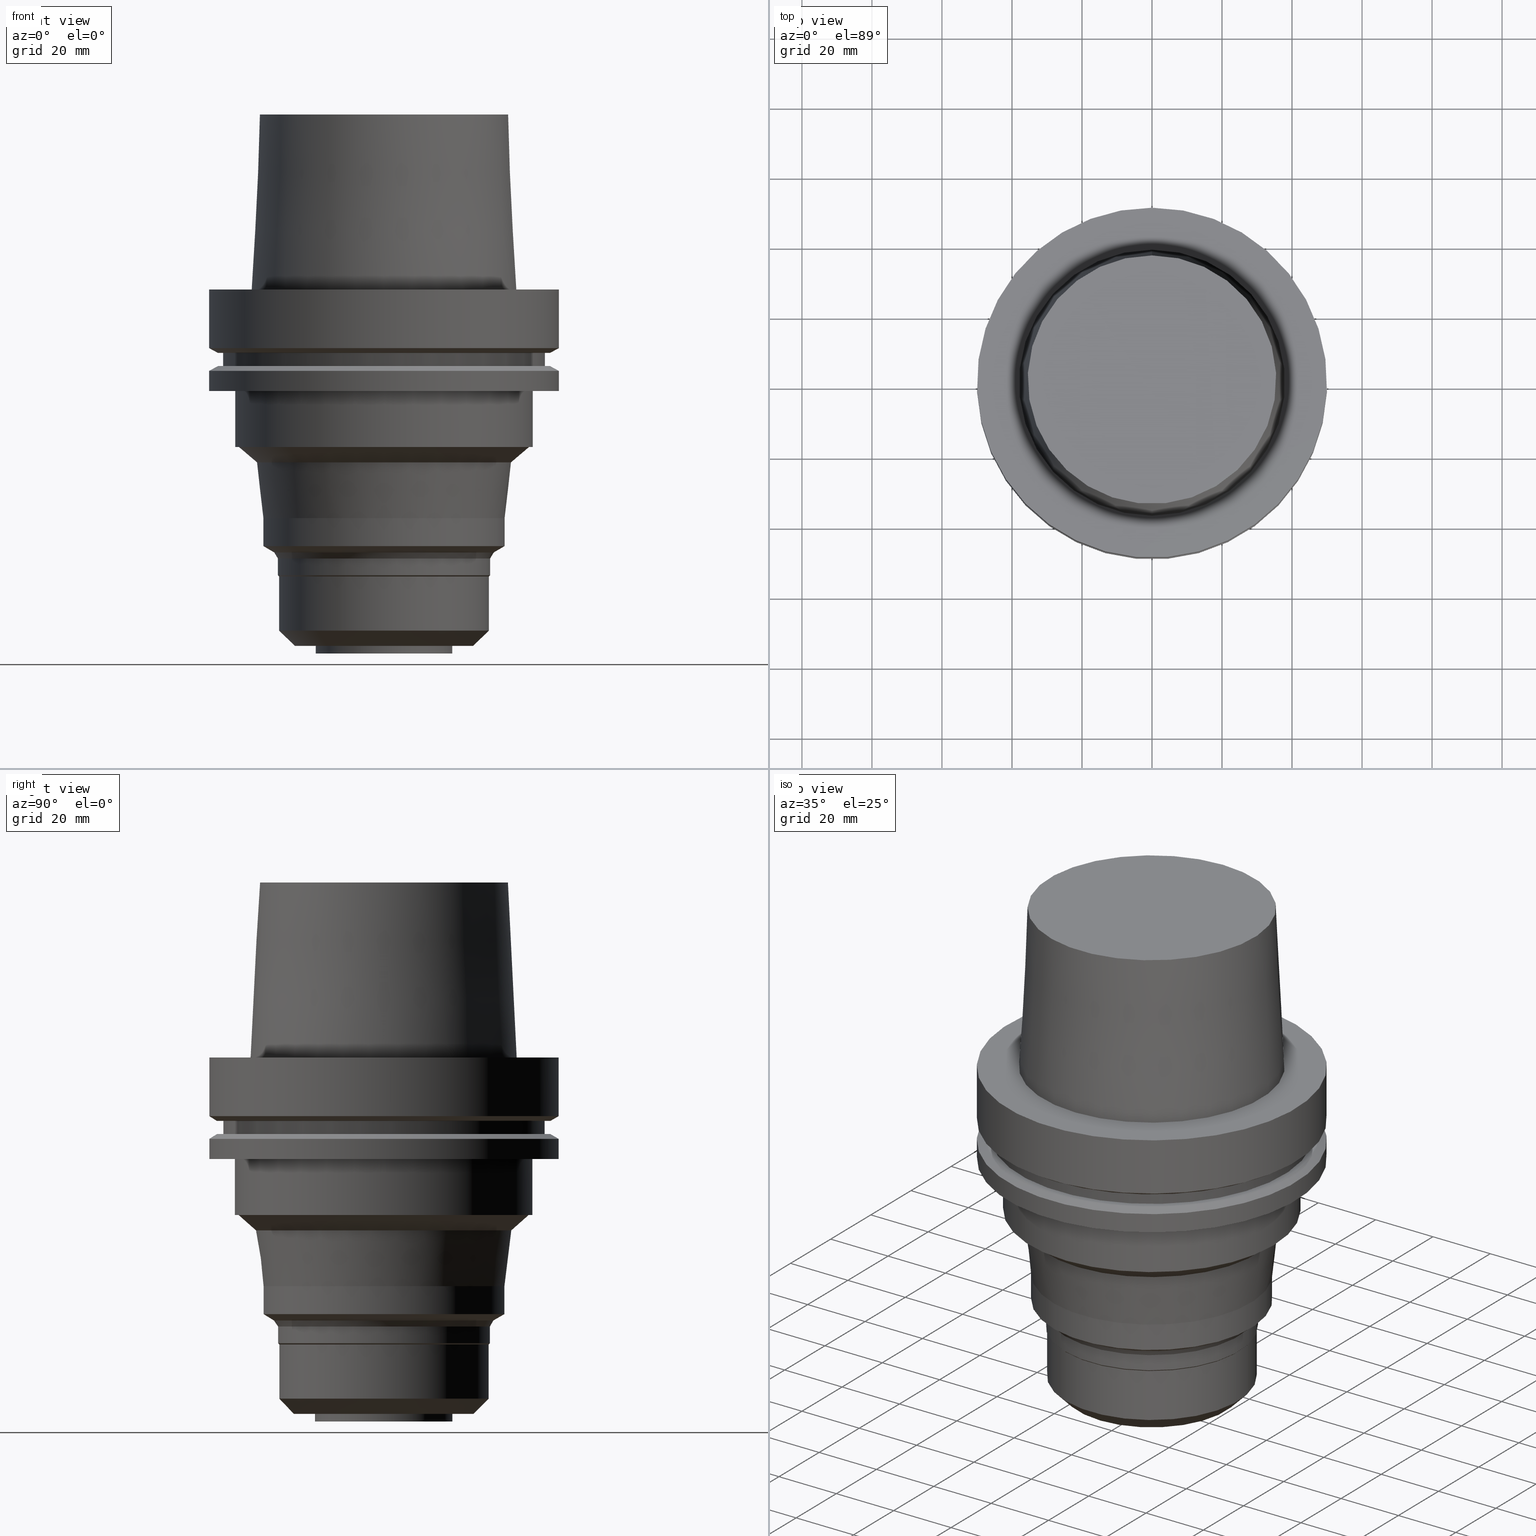
[diagram: canonical four-view strip — front | top / right | iso, engineering-drawing reading convention]
A machine part, canonical four-view strip (front | top / right | iso — engineering-drawing reading convention). The complete STEP part file that produces these views, byte-faithful:
ISO-10303-21;
HEADER;
FILE_DESCRIPTION((''),'1');
FILE_NAME('V:/90_\X2\53D65F9730C730FC30BF\X0\/00_\X2\6DE18DEF30C730FC30BF\X0\/ALL/HSK-BKUS\X2\52A05DE556F3\X0\_201801/HSK-A100-MEGADS/HSK-A100-MEGA.750DS-4.stp','2018-02-01T04:46:29',(''),(''),'Spatial Interop R21 SP3','Kubotek KeyCreator 2011 V10.0.2 (22737)',' ');
FILE_SCHEMA(('automotive_design'));
ENDSEC;
DATA;
#1=MECHANICAL_DESIGN_GEOMETRIC_PRESENTATION_REPRESENTATION(' ',(#10,#11,#12,#13,#14,#15,#16,#17,#18,#19,#20,#21,#22,#23,#24,#25,#26,#27,#28,#29,#30,#31,#32,#33,#34,#35,#36,#37,#38,#39,#40,#41,#42,#43,#44,#45,#46,#47,#48,#49,#50,#51,#52,#53,#54,#55,#56,#57,#58,#59),#6);
#2=PRODUCT_DEFINITION_CONTEXT('',#60,'design');
#3=APPLICATION_PROTOCOL_DEFINITION('INTERNATIONAL STANDARD','automotive_design',1994,#60);
#4=PRODUCT_CATEGORY_RELATIONSHIP('NONE','NONE',#61,#62);
#5=SHAPE_DEFINITION_REPRESENTATION(#63,#64);
#6= (GEOMETRIC_REPRESENTATION_CONTEXT(3)GLOBAL_UNCERTAINTY_ASSIGNED_CONTEXT((#67))GLOBAL_UNIT_ASSIGNED_CONTEXT((#69,#70,#71))REPRESENTATION_CONTEXT('NONE','WORKSPACE'));
#10=STYLED_ITEM('',(#73,#74),#75);
#11=STYLED_ITEM('',(#76),#77);
#12=STYLED_ITEM('',(#78),#79);
#13=STYLED_ITEM('',(#80,#81),#82);
#14=STYLED_ITEM('',(#83),#84);
#15=STYLED_ITEM('',(#85,#86),#87);
#16=STYLED_ITEM('',(#88,#89),#90);
#17=STYLED_ITEM('',(#91,#92),#93);
#18=STYLED_ITEM('',(#94,#95),#96);
#19=STYLED_ITEM('',(#97,#98),#99);
#20=STYLED_ITEM('',(#100),#101);
#21=STYLED_ITEM('',(#102),#103);
#22=STYLED_ITEM('',(#104),#105);
#23=STYLED_ITEM('',(#106,#107),#108);
#24=STYLED_ITEM('',(#109),#110);
#25=STYLED_ITEM('',(#111,#112),#113);
#26=STYLED_ITEM('',(#114),#115);
#27=STYLED_ITEM('',(#116,#117),#118);
#28=STYLED_ITEM('',(#119,#120),#121);
#29=STYLED_ITEM('',(#122,#123),#124);
#30=STYLED_ITEM('',(#125),#126);
#31=STYLED_ITEM('',(#127,#128),#129);
#32=STYLED_ITEM('',(#130,#131),#132);
#33=STYLED_ITEM('',(#133),#134);
#34=STYLED_ITEM('',(#135,#136),#137);
#35=STYLED_ITEM('',(#138,#139),#140);
#36=STYLED_ITEM('',(#141),#142);
#37=STYLED_ITEM('',(#143,#144),#145);
#38=STYLED_ITEM('',(#146),#147);
#39=STYLED_ITEM('',(#148),#149);
#40=STYLED_ITEM('',(#150),#151);
#41=STYLED_ITEM('',(#152),#153);
#42=STYLED_ITEM('',(#154,#155),#156);
#43=STYLED_ITEM('',(#157,#158),#159);
#44=STYLED_ITEM('',(#160,#161),#162);
#45=STYLED_ITEM('',(#163),#164);
#46=STYLED_ITEM('',(#165,#166),#167);
#47=STYLED_ITEM('',(#168,#169),#170);
#48=STYLED_ITEM('',(#171,#172),#173);
#49=STYLED_ITEM('',(#174,#175),#176);
#50=STYLED_ITEM('',(#177),#178);
#51=STYLED_ITEM('',(#179),#180);
#52=STYLED_ITEM('',(#181),#182);
#53=STYLED_ITEM('',(#183),#184);
#54=STYLED_ITEM('',(#185),#186);
#55=STYLED_ITEM('',(#187),#188);
#56=STYLED_ITEM('',(#189),#190);
#57=STYLED_ITEM('',(#191,#192),#193);
#58=STYLED_ITEM('',(#194),#195);
#59=STYLED_ITEM('',(#196,#197),#198);
#60=APPLICATION_CONTEXT(' ');
#61=PRODUCT_CATEGORY('part','NONE');
#62=PRODUCT_RELATED_PRODUCT_CATEGORY('detail',' ',(#199));
#63=PRODUCT_DEFINITION_SHAPE('NONE','NONE',#200);
#64=ADVANCED_BREP_SHAPE_REPRESENTATION('Unnamed[1]',(#137,#201),#6);
#67=UNCERTAINTY_MEASURE_WITH_UNIT(LENGTH_MEASURE(1.0E-006),#69,'','');
#69= (CONVERSION_BASED_UNIT('MILLIMETRE',#204)LENGTH_UNIT()NAMED_UNIT(#207));
#70= (NAMED_UNIT(#209)PLANE_ANGLE_UNIT()SI_UNIT($,.RADIAN.));
#71= (NAMED_UNIT(#209)SOLID_ANGLE_UNIT()SI_UNIT($,.STERADIAN.));
#73=PRESENTATION_STYLE_ASSIGNMENT((#215));
#74=PRESENTATION_STYLE_ASSIGNMENT((#216));
#75=ADVANCED_FACE('Unnamed[1]',(#217),#218,.T.);
#76=PRESENTATION_STYLE_ASSIGNMENT((#219));
#77=EDGE_CURVE('Unnamed[1]',#220,#220,#221,.T.);
#78=PRESENTATION_STYLE_ASSIGNMENT((#222));
#79=EDGE_CURVE('Unnamed[1]',#223,#223,#224,.T.);
#80=PRESENTATION_STYLE_ASSIGNMENT((#225));
#81=PRESENTATION_STYLE_ASSIGNMENT((#226));
#82=ADVANCED_FACE('Unnamed[1]',(#227,#228),#229,.T.);
#83=PRESENTATION_STYLE_ASSIGNMENT((#230));
#84=EDGE_CURVE('Unnamed[1]',#231,#231,#232,.T.);
#85=PRESENTATION_STYLE_ASSIGNMENT((#233));
#86=PRESENTATION_STYLE_ASSIGNMENT((#234));
#87=ADVANCED_FACE('Unnamed[1]',(#235,#236),#237,.T.);
#88=PRESENTATION_STYLE_ASSIGNMENT((#238));
#89=PRESENTATION_STYLE_ASSIGNMENT((#239));
#90=ADVANCED_FACE('Unnamed[1]',(#240,#241),#242,.T.);
#91=PRESENTATION_STYLE_ASSIGNMENT((#243));
#92=PRESENTATION_STYLE_ASSIGNMENT((#244));
#93=ADVANCED_FACE('Unnamed[1]',(#245,#246),#247,.T.);
#94=PRESENTATION_STYLE_ASSIGNMENT((#248));
#95=PRESENTATION_STYLE_ASSIGNMENT((#249));
#96=ADVANCED_FACE('Unnamed[1]',(#250,#251),#252,.T.);
#97=PRESENTATION_STYLE_ASSIGNMENT((#253));
#98=PRESENTATION_STYLE_ASSIGNMENT((#254));
#99=ADVANCED_FACE('Unnamed[1]',(#255,#256),#257,.T.);
#100=PRESENTATION_STYLE_ASSIGNMENT((#258));
#101=EDGE_CURVE('Unnamed[1]',#259,#259,#260,.T.);
#102=PRESENTATION_STYLE_ASSIGNMENT((#261));
#103=EDGE_CURVE('Unnamed[1]',#262,#262,#263,.T.);
#104=PRESENTATION_STYLE_ASSIGNMENT((#264));
#105=EDGE_CURVE('Unnamed[1]',#265,#265,#266,.T.);
#106=PRESENTATION_STYLE_ASSIGNMENT((#267));
#107=PRESENTATION_STYLE_ASSIGNMENT((#268));
#108=ADVANCED_FACE('Unnamed[1]',(#269),#270,.T.);
#109=PRESENTATION_STYLE_ASSIGNMENT((#271));
#110=EDGE_CURVE('Unnamed[1]',#272,#272,#273,.T.);
#111=PRESENTATION_STYLE_ASSIGNMENT((#274));
#112=PRESENTATION_STYLE_ASSIGNMENT((#275));
#113=ADVANCED_FACE('Unnamed[1]',(#276,#277),#278,.T.);
#114=PRESENTATION_STYLE_ASSIGNMENT((#279));
#115=EDGE_CURVE('Unnamed[1]',#280,#280,#281,.T.);
#116=PRESENTATION_STYLE_ASSIGNMENT((#282));
#117=PRESENTATION_STYLE_ASSIGNMENT((#283));
#118=ADVANCED_FACE('Unnamed[1]',(#284,#285),#286,.T.);
#119=PRESENTATION_STYLE_ASSIGNMENT((#287));
#120=PRESENTATION_STYLE_ASSIGNMENT((#288));
#121=ADVANCED_FACE('Unnamed[1]',(#289,#290),#291,.T.);
#122=PRESENTATION_STYLE_ASSIGNMENT((#292));
#123=PRESENTATION_STYLE_ASSIGNMENT((#293));
#124=ADVANCED_FACE('Unnamed[1]',(#294,#295),#296,.T.);
#125=PRESENTATION_STYLE_ASSIGNMENT((#297));
#126=EDGE_CURVE('Unnamed[1]',#298,#298,#299,.T.);
#127=PRESENTATION_STYLE_ASSIGNMENT((#300));
#128=PRESENTATION_STYLE_ASSIGNMENT((#301));
#129=ADVANCED_FACE('Unnamed[1]',(#302,#303),#304,.T.);
#130=PRESENTATION_STYLE_ASSIGNMENT((#305));
#131=PRESENTATION_STYLE_ASSIGNMENT((#306));
#132=ADVANCED_FACE('Unnamed[1]',(#307,#308),#309,.T.);
#133=PRESENTATION_STYLE_ASSIGNMENT((#310));
#134=EDGE_CURVE('Unnamed[1]',#311,#311,#312,.T.);
#135=PRESENTATION_STYLE_ASSIGNMENT((#313));
#136=PRESENTATION_STYLE_ASSIGNMENT((#314));
#137=MANIFOLD_SOLID_BREP('Unnamed[1]',#315);
#138=PRESENTATION_STYLE_ASSIGNMENT((#316));
#139=PRESENTATION_STYLE_ASSIGNMENT((#317));
#140=ADVANCED_FACE('Unnamed[1]',(#318,#319),#320,.T.);
#141=PRESENTATION_STYLE_ASSIGNMENT((#321));
#142=EDGE_CURVE('Unnamed[1]',#322,#322,#323,.T.);
#143=PRESENTATION_STYLE_ASSIGNMENT((#324));
#144=PRESENTATION_STYLE_ASSIGNMENT((#325));
#145=ADVANCED_FACE('Unnamed[1]',(#326,#327),#328,.T.);
#146=PRESENTATION_STYLE_ASSIGNMENT((#329));
#147=EDGE_CURVE('Unnamed[1]',#330,#330,#331,.T.);
#148=PRESENTATION_STYLE_ASSIGNMENT((#332));
#149=EDGE_CURVE('Unnamed[1]',#333,#333,#334,.T.);
#150=PRESENTATION_STYLE_ASSIGNMENT((#335));
#151=EDGE_CURVE('Unnamed[1]',#336,#336,#337,.T.);
#152=PRESENTATION_STYLE_ASSIGNMENT((#338));
#153=EDGE_CURVE('Unnamed[1]',#339,#339,#340,.T.);
#154=PRESENTATION_STYLE_ASSIGNMENT((#341));
#155=PRESENTATION_STYLE_ASSIGNMENT((#342));
#156=ADVANCED_FACE('Unnamed[1]',(#343,#344),#345,.T.);
#157=PRESENTATION_STYLE_ASSIGNMENT((#346));
#158=PRESENTATION_STYLE_ASSIGNMENT((#347));
#159=ADVANCED_FACE('Unnamed[1]',(#348,#349),#350,.T.);
#160=PRESENTATION_STYLE_ASSIGNMENT((#351));
#161=PRESENTATION_STYLE_ASSIGNMENT((#352));
#162=ADVANCED_FACE('Unnamed[1]',(#353,#354),#355,.T.);
#163=PRESENTATION_STYLE_ASSIGNMENT((#356));
#164=EDGE_CURVE('Unnamed[1]',#357,#357,#358,.T.);
#165=PRESENTATION_STYLE_ASSIGNMENT((#359));
#166=PRESENTATION_STYLE_ASSIGNMENT((#360));
#167=ADVANCED_FACE('Unnamed[1]',(#361,#362),#363,.T.);
#168=PRESENTATION_STYLE_ASSIGNMENT((#364));
#169=PRESENTATION_STYLE_ASSIGNMENT((#365));
#170=ADVANCED_FACE('Unnamed[1]',(#366,#367),#368,.T.);
#171=PRESENTATION_STYLE_ASSIGNMENT((#369));
#172=PRESENTATION_STYLE_ASSIGNMENT((#370));
#173=ADVANCED_FACE('Unnamed[1]',(#371,#372),#373,.T.);
#174=PRESENTATION_STYLE_ASSIGNMENT((#374));
#175=PRESENTATION_STYLE_ASSIGNMENT((#375));
#176=ADVANCED_FACE('Unnamed[1]',(#376,#377),#378,.T.);
#177=PRESENTATION_STYLE_ASSIGNMENT((#379));
#178=EDGE_CURVE('Unnamed[1]',#380,#380,#381,.T.);
#179=PRESENTATION_STYLE_ASSIGNMENT((#382));
#180=EDGE_CURVE('Unnamed[1]',#383,#383,#384,.T.);
#181=PRESENTATION_STYLE_ASSIGNMENT((#385));
#182=EDGE_CURVE('Unnamed[1]',#386,#386,#387,.T.);
#183=PRESENTATION_STYLE_ASSIGNMENT((#388));
#184=EDGE_CURVE('Unnamed[1]',#389,#389,#390,.T.);
#185=PRESENTATION_STYLE_ASSIGNMENT((#391));
#186=EDGE_CURVE('Unnamed[1]',#392,#392,#393,.T.);
#187=PRESENTATION_STYLE_ASSIGNMENT((#394));
#188=EDGE_CURVE('Unnamed[1]',#395,#395,#396,.T.);
#189=PRESENTATION_STYLE_ASSIGNMENT((#397));
#190=EDGE_CURVE('Unnamed[1]',#398,#398,#399,.T.);
#191=PRESENTATION_STYLE_ASSIGNMENT((#400));
#192=PRESENTATION_STYLE_ASSIGNMENT((#401));
#193=ADVANCED_FACE('Unnamed[1]',(#402,#403),#404,.T.);
#194=PRESENTATION_STYLE_ASSIGNMENT((#405));
#195=EDGE_CURVE('Unnamed[1]',#406,#406,#407,.T.);
#196=PRESENTATION_STYLE_ASSIGNMENT((#408));
#197=PRESENTATION_STYLE_ASSIGNMENT((#409));
#198=ADVANCED_FACE('Unnamed[1]',(#410,#411),#412,.T.);
#199=PRODUCT('Unnamed[1]','Unnamed[1]','PART-Unnamed[1]-DESC',(#413));
#200=PRODUCT_DEFINITION('NONE','NONE',#414,#2);
#201=AXIS2_PLACEMENT_3D('',#415,#416,#417);
#204=LENGTH_MEASURE_WITH_UNIT(LENGTH_MEASURE(1.0),#418);
#207=DIMENSIONAL_EXPONENTS(1.0,0.0,0.0,0.0,0.0,0.0,0.0);
#209=DIMENSIONAL_EXPONENTS(0.0,0.0,0.0,0.0,0.0,0.0,0.0);
#215=SURFACE_STYLE_USAGE(.BOTH.,#419);
#216=CURVE_STYLE('',#420,POSITIVE_LENGTH_MEASURE(1000.0),#421);
#217=FACE_OUTER_BOUND('',#422,.T.);
#218=PLANE('',#423);
#219=CURVE_STYLE('',#424,POSITIVE_LENGTH_MEASURE(1000.0),#425);
#220=VERTEX_POINT('',#426);
#221=CIRCLE('',#427,50.0);
#222=CURVE_STYLE('',#428,POSITIVE_LENGTH_MEASURE(1000.0),#429);
#223=VERTEX_POINT('',#430);
#224=CIRCLE('',#431,30.0);
#225=SURFACE_STYLE_USAGE(.BOTH.,#432);
#226=CURVE_STYLE('',#433,POSITIVE_LENGTH_MEASURE(1000.0),#434);
#227=FACE_BOUND('',#435,.T.);
#228=FACE_BOUND('',#436,.T.);
#229=CONICAL_SURFACE('',#437,48.81129763,1.04719755328238);
#230=CURVE_STYLE('',#438,POSITIVE_LENGTH_MEASURE(1000.0),#439);
#231=VERTEX_POINT('',#440);
#232=CIRCLE('',#441,41.4220102418478);
#233=SURFACE_STYLE_USAGE(.BOTH.,#442);
#234=CURVE_STYLE('',#443,POSITIVE_LENGTH_MEASURE(1000.0),#444);
#235=FACE_BOUND('',#445,.T.);
#236=FACE_BOUND('',#446,.T.);
#237=CYLINDRICAL_SURFACE('',#447,50.0);
#238=SURFACE_STYLE_USAGE(.BOTH.,#448);
#239=CURVE_STYLE('',#449,POSITIVE_LENGTH_MEASURE(1000.0),#450);
#240=FACE_BOUND('',#451,.T.);
#241=FACE_BOUND('',#452,.T.);
#242=CYLINDRICAL_SURFACE('',#453,30.3500000000001);
#243=SURFACE_STYLE_USAGE(.BOTH.,#454);
#244=CURVE_STYLE('',#455,POSITIVE_LENGTH_MEASURE(1000.0),#456);
#245=FACE_BOUND('',#457,.T.);
#246=FACE_BOUND('',#458,.T.);
#247=CYLINDRICAL_SURFACE('',#459,46.0);
#248=SURFACE_STYLE_USAGE(.BOTH.,#460);
#249=CURVE_STYLE('',#461,POSITIVE_LENGTH_MEASURE(1000.0),#462);
#250=FACE_BOUND('',#463,.T.);
#251=FACE_BOUND('',#464,.T.);
#252=CONICAL_SURFACE('',#465,35.4797503992108,0.122535712139125);
#253=SURFACE_STYLE_USAGE(.BOTH.,#466);
#254=CURVE_STYLE('',#467,POSITIVE_LENGTH_MEASURE(1000.0),#468);
#255=FACE_BOUND('',#469,.T.);
#256=FACE_BOUND('',#470,.T.);
#257=CYLINDRICAL_SURFACE('',#471,19.625107076497);
#258=CURVE_STYLE('',#472,POSITIVE_LENGTH_MEASURE(1000.0),#473);
#259=VERTEX_POINT('',#474);
#260=CIRCLE('',#475,50.0);
#261=CURVE_STYLE('',#476,POSITIVE_LENGTH_MEASURE(1000.0),#477);
#262=VERTEX_POINT('',#478);
#263=CIRCLE('',#479,47.62259526);
#264=CURVE_STYLE('',#480,POSITIVE_LENGTH_MEASURE(1000.0),#481);
#265=VERTEX_POINT('',#482);
#266=CIRCLE('',#483,42.5);
#267=SURFACE_STYLE_USAGE(.BOTH.,#484);
#268=CURVE_STYLE('',#485,POSITIVE_LENGTH_MEASURE(1000.0),#486);
#269=FACE_OUTER_BOUND('',#487,.T.);
#270=PLANE('',#488);
#271=CURVE_STYLE('',#489,POSITIVE_LENGTH_MEASURE(1000.0),#490);
#272=VERTEX_POINT('',#491);
#273=CIRCLE('',#492,36.4595007984214);
#274=SURFACE_STYLE_USAGE(.BOTH.,#493);
#275=CURVE_STYLE('',#494,POSITIVE_LENGTH_MEASURE(1000.0),#495);
#276=FACE_BOUND('',#496,.T.);
#277=FACE_BOUND('',#497,.T.);
#278=CYLINDRICAL_SURFACE('',#498,50.0);
#279=CURVE_STYLE('',#499,POSITIVE_LENGTH_MEASURE(1000.0),#500);
#280=VERTEX_POINT('',#501);
#281=CIRCLE('',#502,34.4999999999997);
#282=SURFACE_STYLE_USAGE(.BOTH.,#503);
#283=CURVE_STYLE('',#504,POSITIVE_LENGTH_MEASURE(1000.0),#505);
#284=FACE_BOUND('',#506,.T.);
#285=FACE_BOUND('',#507,.T.);
#286=CONICAL_SURFACE('',#508,36.7500000007484,0.0499583956894843);
#287=SURFACE_STYLE_USAGE(.BOTH.,#509);
#288=CURVE_STYLE('',#510,POSITIVE_LENGTH_MEASURE(1000.0),#511);
#289=FACE_BOUND('',#512,.T.);
#290=FACE_BOUND('',#513,.T.);
#291=CONICAL_SURFACE('',#514,48.81129763,1.04719755328238);
#292=SURFACE_STYLE_USAGE(.BOTH.,#515);
#293=CURVE_STYLE('',#516,POSITIVE_LENGTH_MEASURE(1000.0),#517);
#294=FACE_OUTER_BOUND('',#518,.T.);
#295=FACE_BOUND('',#519,.T.);
#296=PLANE('',#520);
#297=CURVE_STYLE('',#521,POSITIVE_LENGTH_MEASURE(1000.0),#522);
#298=VERTEX_POINT('',#523);
#299=CIRCLE('',#524,19.625107076497);
#300=SURFACE_STYLE_USAGE(.BOTH.,#525);
#301=CURVE_STYLE('',#526,POSITIVE_LENGTH_MEASURE(1000.0),#527);
#302=FACE_BOUND('',#528,.T.);
#303=FACE_BOUND('',#529,.T.);
#304=CONICAL_SURFACE('',#530,30.85,0.523598775598133);
#305=SURFACE_STYLE_USAGE(.BOTH.,#531);
#306=CURVE_STYLE('',#532,POSITIVE_LENGTH_MEASURE(1000.0),#533);
#307=FACE_BOUND('',#534,.T.);
#308=FACE_OUTER_BOUND('',#535,.T.);
#309=PLANE('',#536);
#310=CURVE_STYLE('',#537,POSITIVE_LENGTH_MEASURE(1000.0),#538);
#311=VERTEX_POINT('',#539);
#312=CIRCLE('',#540,37.9999999999349);
#313=SURFACE_STYLE_USAGE(.BOTH.,#541);
#314=CURVE_STYLE('',#542,POSITIVE_LENGTH_MEASURE(1000.0),#543);
#315=CLOSED_SHELL('',(#75,#118,#140,#113,#121,#170,#93,#124,#82,#87,#198,#167,#162,#173,#96,#193,#156,#129,#90,#176,#159,#145,#132,#99,#108));
#316=SURFACE_STYLE_USAGE(.BOTH.,#544);
#317=CURVE_STYLE('',#545,POSITIVE_LENGTH_MEASURE(1000.0),#546);
#318=FACE_OUTER_BOUND('',#547,.T.);
#319=FACE_BOUND('',#548,.T.);
#320=PLANE('',#549);
#321=CURVE_STYLE('',#550,POSITIVE_LENGTH_MEASURE(1000.0),#551);
#322=VERTEX_POINT('',#552);
#323=CIRCLE('',#553,46.0);
#324=SURFACE_STYLE_USAGE(.BOTH.,#554);
#325=CURVE_STYLE('',#555,POSITIVE_LENGTH_MEASURE(1000.0),#556);
#326=FACE_BOUND('',#557,.T.);
#327=FACE_BOUND('',#558,.T.);
#328=CONICAL_SURFACE('',#559,27.8276930485173,0.78539816339748);
#329=CURVE_STYLE('',#560,POSITIVE_LENGTH_MEASURE(1000.0),#561);
#330=VERTEX_POINT('',#562);
#331=CIRCLE('',#563,42.5);
#332=CURVE_STYLE('',#564,POSITIVE_LENGTH_MEASURE(1000.0),#565);
#333=VERTEX_POINT('',#566);
#334=CIRCLE('',#567,50.0);
#335=CURVE_STYLE('',#568,POSITIVE_LENGTH_MEASURE(1000.0),#569);
#336=VERTEX_POINT('',#570);
#337=CIRCLE('',#571,46.0);
#338=CURVE_STYLE('',#572,POSITIVE_LENGTH_MEASURE(1000.0),#573);
#339=VERTEX_POINT('',#574);
#340=CIRCLE('',#575,30.0000000000001);
#341=SURFACE_STYLE_USAGE(.BOTH.,#576);
#342=CURVE_STYLE('',#577,POSITIVE_LENGTH_MEASURE(1000.0),#578);
#343=FACE_BOUND('',#579,.T.);
#344=FACE_BOUND('',#580,.T.);
#345=CONICAL_SURFACE('',#581,32.9249999999997,1.04719755119622);
#346=SURFACE_STYLE_USAGE(.BOTH.,#582);
#347=CURVE_STYLE('',#583,POSITIVE_LENGTH_MEASURE(1000.0),#584);
#348=FACE_BOUND('',#585,.T.);
#349=FACE_BOUND('',#586,.T.);
#350=CYLINDRICAL_SURFACE('',#587,30.0000000000001);
#351=SURFACE_STYLE_USAGE(.BOTH.,#588);
#352=CURVE_STYLE('',#589,POSITIVE_LENGTH_MEASURE(1000.0),#590);
#353=FACE_BOUND('',#591,.T.);
#354=FACE_OUTER_BOUND('',#592,.T.);
#355=PLANE('',#593);
#356=CURVE_STYLE('',#594,POSITIVE_LENGTH_MEASURE(1000.0),#595);
#357=VERTEX_POINT('',#596);
#358=CIRCLE('',#597,50.0);
#359=SURFACE_STYLE_USAGE(.BOTH.,#598);
#360=CURVE_STYLE('',#599,POSITIVE_LENGTH_MEASURE(1000.0),#600);
#361=FACE_BOUND('',#601,.T.);
#362=FACE_BOUND('',#602,.T.);
#363=CYLINDRICAL_SURFACE('',#603,42.5);
#364=SURFACE_STYLE_USAGE(.BOTH.,#604);
#365=CURVE_STYLE('',#605,POSITIVE_LENGTH_MEASURE(1000.0),#606);
#366=FACE_BOUND('',#607,.T.);
#367=FACE_OUTER_BOUND('',#608,.T.);
#368=PLANE('',#609);
#369=SURFACE_STYLE_USAGE(.BOTH.,#610);
#370=CURVE_STYLE('',#611,POSITIVE_LENGTH_MEASURE(1000.0),#612);
#371=FACE_BOUND('',#613,.T.);
#372=FACE_BOUND('',#614,.T.);
#373=CONICAL_SURFACE('',#615,38.9407555201346,0.846666019467012);
#374=SURFACE_STYLE_USAGE(.BOTH.,#616);
#375=CURVE_STYLE('',#617,POSITIVE_LENGTH_MEASURE(1000.0),#618);
#376=FACE_BOUND('',#619,.T.);
#377=FACE_BOUND('',#620,.T.);
#378=CONICAL_SURFACE('',#621,30.175,0.785398163396514);
#379=CURVE_STYLE('',#622,POSITIVE_LENGTH_MEASURE(1000.0),#623);
#380=VERTEX_POINT('',#624);
#381=CIRCLE('',#625,35.5000000015618);
#382=CURVE_STYLE('',#626,POSITIVE_LENGTH_MEASURE(1000.0),#627);
#383=VERTEX_POINT('',#628);
#384=CIRCLE('',#629,47.62259526);
#385=CURVE_STYLE('',#630,POSITIVE_LENGTH_MEASURE(1000.0),#631);
#386=VERTEX_POINT('',#632);
#387=CIRCLE('',#633,31.3499999999996);
#388=CURVE_STYLE('',#634,POSITIVE_LENGTH_MEASURE(1000.0),#635);
#389=VERTEX_POINT('',#636);
#390=CIRCLE('',#637,30.3500000000003);
#391=CURVE_STYLE('',#638,POSITIVE_LENGTH_MEASURE(1000.0),#639);
#392=VERTEX_POINT('',#640);
#393=CIRCLE('',#641,30.3499999999999);
#394=CURVE_STYLE('',#642,POSITIVE_LENGTH_MEASURE(1000.0),#643);
#395=VERTEX_POINT('',#644);
#396=CIRCLE('',#645,25.6553860970345);
#397=CURVE_STYLE('',#646,POSITIVE_LENGTH_MEASURE(1000.0),#647);
#398=VERTEX_POINT('',#648);
#399=CIRCLE('',#649,19.625107076497);
#400=SURFACE_STYLE_USAGE(.BOTH.,#650);
#401=CURVE_STYLE('',#651,POSITIVE_LENGTH_MEASURE(1000.0),#652);
#402=FACE_BOUND('',#653,.T.);
#403=FACE_BOUND('',#654,.T.);
#404=CYLINDRICAL_SURFACE('',#655,34.4999999999999);
#405=CURVE_STYLE('',#656,POSITIVE_LENGTH_MEASURE(1000.0),#657);
#406=VERTEX_POINT('',#658);
#407=CIRCLE('',#659,34.5000000000001);
#408=SURFACE_STYLE_USAGE(.BOTH.,#660);
#409=CURVE_STYLE('',#661,POSITIVE_LENGTH_MEASURE(1000.0),#662);
#410=FACE_BOUND('',#663,.T.);
#411=FACE_OUTER_BOUND('',#664,.T.);
#412=PLANE('',#665);
#413=PRODUCT_CONTEXT('',#60,'mechanical');
#414=PRODUCT_DEFINITION_FORMATION_WITH_SPECIFIED_SOURCE(' ','NONE',#199,.NOT_KNOWN.);
#415=CARTESIAN_POINT('',(0.0,0.0,0.0));
#416=DIRECTION('',(0.0,0.0,1.0));
#417=DIRECTION('',(1.0,0.0,0.0));
#418= (NAMED_UNIT(#207)LENGTH_UNIT()SI_UNIT(.MILLI.,.METRE.));
#419=SURFACE_SIDE_STYLE('',(#667));
#420=DRAUGHTING_PRE_DEFINED_CURVE_FONT('continuous');
#421=COLOUR_RGB('',0.0,1.0,0.0);
#422=EDGE_LOOP('',(#668));
#423=AXIS2_PLACEMENT_3D('',#669,#670,#671);
#424=DRAUGHTING_PRE_DEFINED_CURVE_FONT('continuous');
#425=COLOUR_RGB('',0.0,1.0,0.0);
#426=CARTESIAN_POINT('',(1.77573785876366E-015,50.0,-29.0));
#427=AXIS2_PLACEMENT_3D('',#672,#673,#674);
#428=DRAUGHTING_PRE_DEFINED_CURVE_FONT('continuous');
#429=COLOUR_RGB('',0.0,1.0,0.0);
#430=CARTESIAN_POINT('',(5.96742133217014E-015,30.0,-97.4553860970346));
#431=AXIS2_PLACEMENT_3D('',#675,#676,#677);
#432=SURFACE_SIDE_STYLE('',(#678));
#433=DRAUGHTING_PRE_DEFINED_CURVE_FONT('continuous');
#434=COLOUR_RGB('',0.0,1.0,0.0);
#435=EDGE_LOOP('',(#679));
#436=EDGE_LOOP('',(#680));
#437=AXIS2_PLACEMENT_3D('',#681,#682,#683);
#438=DRAUGHTING_PRE_DEFINED_CURVE_FONT('continuous');
#439=COLOUR_RGB('',0.0,1.0,0.0);
#440=CARTESIAN_POINT('',(2.75545529808154E-015,41.4220102418478,-45.0));
#441=AXIS2_PLACEMENT_3D('',#684,#685,#686);
#442=SURFACE_SIDE_STYLE('',(#687));
#443=DRAUGHTING_PRE_DEFINED_CURVE_FONT('continuous');
#444=COLOUR_RGB('',0.0,1.0,0.0);
#445=EDGE_LOOP('',(#688));
#446=EDGE_LOOP('',(#689));
#447=AXIS2_PLACEMENT_3D('',#690,#691,#692);
#448=SURFACE_SIDE_STYLE('',(#693));
#449=DRAUGHTING_PRE_DEFINED_CURVE_FONT('continuous');
#450=COLOUR_RGB('',0.0,1.0,0.0);
#451=EDGE_LOOP('',(#694));
#452=EDGE_LOOP('',(#695));
#453=AXIS2_PLACEMENT_3D('',#696,#697,#698);
#454=SURFACE_SIDE_STYLE('',(#699));
#455=DRAUGHTING_PRE_DEFINED_CURVE_FONT('continuous');
#456=COLOUR_RGB('',0.0,1.0,0.0);
#457=EDGE_LOOP('',(#700));
#458=EDGE_LOOP('',(#701));
#459=AXIS2_PLACEMENT_3D('',#702,#703,#704);
#460=SURFACE_SIDE_STYLE('',(#705));
#461=DRAUGHTING_PRE_DEFINED_CURVE_FONT('continuous');
#462=COLOUR_RGB('',0.0,1.0,0.0);
#463=EDGE_LOOP('',(#706));
#464=EDGE_LOOP('',(#707));
#465=AXIS2_PLACEMENT_3D('',#708,#709,#710);
#466=SURFACE_SIDE_STYLE('',(#711));
#467=DRAUGHTING_PRE_DEFINED_CURVE_FONT('continuous');
#468=COLOUR_RGB('',0.0,1.0,0.0);
#469=EDGE_LOOP('',(#712));
#470=EDGE_LOOP('',(#713));
#471=AXIS2_PLACEMENT_3D('',#714,#715,#716);
#472=DRAUGHTING_PRE_DEFINED_CURVE_FONT('continuous');
#473=COLOUR_RGB('',0.0,1.0,0.0);
#474=CARTESIAN_POINT('',(-1.81547968506605E-031,50.0,-9.76766004263236E-016));
#475=AXIS2_PLACEMENT_3D('',#717,#718,#719);
#476=DRAUGHTING_PRE_DEFINED_CURVE_FONT('continuous');
#477=COLOUR_RGB('',0.0,1.0,0.0);
#478=CARTESIAN_POINT('',(1.33945743656742E-015,47.62259526,-21.875));
#479=AXIS2_PLACEMENT_3D('',#720,#721,#722);
#480=DRAUGHTING_PRE_DEFINED_CURVE_FONT('continuous');
#481=COLOUR_RGB('',0.0,1.0,0.0);
#482=CARTESIAN_POINT('',(2.75545529808154E-015,42.5,-45.0));
#483=AXIS2_PLACEMENT_3D('',#723,#724,#725);
#484=SURFACE_SIDE_STYLE('',(#726));
#485=DRAUGHTING_PRE_DEFINED_CURVE_FONT('continuous');
#486=COLOUR_RGB('',0.0,1.0,0.0);
#487=EDGE_LOOP('',(#727));
#488=AXIS2_PLACEMENT_3D('',#728,#729,#730);
#489=DRAUGHTING_PRE_DEFINED_CURVE_FONT('continuous');
#490=COLOUR_RGB('',0.0,1.0,0.0);
#491=CARTESIAN_POINT('',(3.02419506864651E-015,36.4595007984214,-49.3888535168193));
#492=AXIS2_PLACEMENT_3D('',#731,#732,#733);
#493=SURFACE_SIDE_STYLE('',(#734));
#494=DRAUGHTING_PRE_DEFINED_CURVE_FONT('continuous');
#495=COLOUR_RGB('',0.0,1.0,0.0);
#496=EDGE_LOOP('',(#735));
#497=EDGE_LOOP('',(#736));
#498=AXIS2_PLACEMENT_3D('',#737,#738,#739);
#499=DRAUGHTING_PRE_DEFINED_CURVE_FONT('continuous');
#500=COLOUR_RGB('',0.0,1.0,0.0);
#501=CARTESIAN_POINT('',(4.48833051887502E-015,34.4999999999997,-73.2999999999996));
#502=AXIS2_PLACEMENT_3D('',#740,#741,#742);
#503=SURFACE_SIDE_STYLE('',(#743));
#504=DRAUGHTING_PRE_DEFINED_CURVE_FONT('continuous');
#505=COLOUR_RGB('',0.0,1.0,0.0);
#506=EDGE_LOOP('',(#744));
#507=EDGE_LOOP('',(#745));
#508=AXIS2_PLACEMENT_3D('',#746,#747,#748);
#509=SURFACE_SIDE_STYLE('',(#749));
#510=DRAUGHTING_PRE_DEFINED_CURVE_FONT('continuous');
#511=COLOUR_RGB('',0.0,1.0,0.0);
#512=EDGE_LOOP('',(#750));
#513=EDGE_LOOP('',(#751));
#514=AXIS2_PLACEMENT_3D('',#752,#753,#754);
#515=SURFACE_SIDE_STYLE('',(#755));
#516=DRAUGHTING_PRE_DEFINED_CURVE_FONT('continuous');
#517=COLOUR_RGB('',0.0,1.0,0.0);
#518=EDGE_LOOP('',(#756));
#519=EDGE_LOOP('',(#757));
#520=AXIS2_PLACEMENT_3D('',#758,#759,#760);
#521=DRAUGHTING_PRE_DEFINED_CURVE_FONT('continuous');
#522=COLOUR_RGB('',0.0,1.0,0.0);
#523=CARTESIAN_POINT('',(6.36816335556624E-015,19.6251070764971,-104.0));
#524=AXIS2_PLACEMENT_3D('',#761,#762,#763);
#525=SURFACE_SIDE_STYLE('',(#764));
#526=DRAUGHTING_PRE_DEFINED_CURVE_FONT('continuous');
#527=COLOUR_RGB('',0.0,1.0,0.0);
#528=EDGE_LOOP('',(#765));
#529=EDGE_LOOP('',(#766));
#530=AXIS2_PLACEMENT_3D('',#767,#768,#769);
#531=SURFACE_SIDE_STYLE('',(#770));
#532=DRAUGHTING_PRE_DEFINED_CURVE_FONT('continuous');
#533=COLOUR_RGB('',0.0,1.0,0.0);
#534=EDGE_LOOP('',(#771));
#535=EDGE_LOOP('',(#772));
#536=AXIS2_PLACEMENT_3D('',#773,#774,#775);
#537=DRAUGHTING_PRE_DEFINED_CURVE_FONT('continuous');
#538=COLOUR_RGB('',0.0,1.0,0.0);
#539=CARTESIAN_POINT('',(-3.3636548776863E-032,37.9999999999349,-2.44634216324803E-015));
#540=AXIS2_PLACEMENT_3D('',#776,#777,#778);
#541=SURFACE_SIDE_STYLE('',(#779));
#542=DRAUGHTING_PRE_DEFINED_CURVE_FONT('continuous');
#543=COLOUR_RGB('',0.0,1.0,0.0);
#544=SURFACE_SIDE_STYLE('',(#780));
#545=DRAUGHTING_PRE_DEFINED_CURVE_FONT('continuous');
#546=COLOUR_RGB('',0.0,1.0,0.0);
#547=EDGE_LOOP('',(#781));
#548=EDGE_LOOP('',(#782));
#549=AXIS2_PLACEMENT_3D('',#783,#784,#785);
#550=DRAUGHTING_PRE_DEFINED_CURVE_FONT('continuous');
#551=COLOUR_RGB('',0.0,1.0,0.0);
#552=CARTESIAN_POINT('',(1.10983616172729E-015,46.0,-18.125));
#553=AXIS2_PLACEMENT_3D('',#786,#787,#788);
#554=SURFACE_SIDE_STYLE('',(#789));
#555=DRAUGHTING_PRE_DEFINED_CURVE_FONT('continuous');
#556=COLOUR_RGB('',0.0,1.0,0.0);
#557=EDGE_LOOP('',(#790));
#558=EDGE_LOOP('',(#791));
#559=AXIS2_PLACEMENT_3D('',#792,#793,#794);
#560=DRAUGHTING_PRE_DEFINED_CURVE_FONT('continuous');
#561=COLOUR_RGB('',0.0,1.0,0.0);
#562=CARTESIAN_POINT('',(1.77573785876366E-015,42.5,-29.0));
#563=AXIS2_PLACEMENT_3D('',#795,#796,#797);
#564=DRAUGHTING_PRE_DEFINED_CURVE_FONT('continuous');
#565=COLOUR_RGB('',0.0,1.0,0.0);
#566=CARTESIAN_POINT('',(1.0257889421431E-015,50.0,-16.75240474));
#567=AXIS2_PLACEMENT_3D('',#798,#799,#800);
#568=DRAUGHTING_PRE_DEFINED_CURVE_FONT('continuous');
#569=COLOUR_RGB('',0.0,1.0,0.0);
#570=CARTESIAN_POINT('',(1.33945743656742E-015,46.0,-21.875));
#571=AXIS2_PLACEMENT_3D('',#801,#802,#803);
#572=DRAUGHTING_PRE_DEFINED_CURVE_FONT('continuous');
#573=COLOUR_RGB('',0.0,1.0,0.0);
#574=CARTESIAN_POINT('',(5.02080716863011E-015,30.0000000000001,-81.9960036171374));
#575=AXIS2_PLACEMENT_3D('',#804,#805,#806);
#576=SURFACE_SIDE_STYLE('',(#807));
#577=DRAUGHTING_PRE_DEFINED_CURVE_FONT('continuous');
#578=COLOUR_RGB('',0.0,1.0,0.0);
#579=EDGE_LOOP('',(#808));
#580=EDGE_LOOP('',(#809));
#581=AXIS2_PLACEMENT_3D('',#810,#811,#812);
#582=SURFACE_SIDE_STYLE('',(#813));
#583=DRAUGHTING_PRE_DEFINED_CURVE_FONT('continuous');
#584=COLOUR_RGB('',0.0,1.0,0.0);
#585=EDGE_LOOP('',(#814));
#586=EDGE_LOOP('',(#815));
#587=AXIS2_PLACEMENT_3D('',#816,#817,#818);
#588=SURFACE_SIDE_STYLE('',(#819));
#589=DRAUGHTING_PRE_DEFINED_CURVE_FONT('continuous');
#590=COLOUR_RGB('',0.0,1.0,0.0);
#591=EDGE_LOOP('',(#820));
#592=EDGE_LOOP('',(#821));
#593=AXIS2_PLACEMENT_3D('',#822,#823,#824);
#594=DRAUGHTING_PRE_DEFINED_CURVE_FONT('continuous');
#595=COLOUR_RGB('',0.0,1.0,0.0);
#596=CARTESIAN_POINT('',(1.42350465615161E-015,50.0,-23.24759526));
#597=AXIS2_PLACEMENT_3D('',#825,#826,#827);
#598=SURFACE_SIDE_STYLE('',(#828));
#599=DRAUGHTING_PRE_DEFINED_CURVE_FONT('continuous');
#600=COLOUR_RGB('',0.0,1.0,0.0);
#601=EDGE_LOOP('',(#829));
#602=EDGE_LOOP('',(#830));
#603=AXIS2_PLACEMENT_3D('',#831,#832,#833);
#604=SURFACE_SIDE_STYLE('',(#834));
#605=DRAUGHTING_PRE_DEFINED_CURVE_FONT('continuous');
#606=COLOUR_RGB('',0.0,1.0,0.0);
#607=EDGE_LOOP('',(#835));
#608=EDGE_LOOP('',(#836));
#609=AXIS2_PLACEMENT_3D('',#837,#838,#839);
#610=SURFACE_SIDE_STYLE('',(#840));
#611=DRAUGHTING_PRE_DEFINED_CURVE_FONT('continuous');
#612=COLOUR_RGB('',0.0,1.0,0.0);
#613=EDGE_LOOP('',(#841));
#614=EDGE_LOOP('',(#842));
#615=AXIS2_PLACEMENT_3D('',#843,#844,#845);
#616=SURFACE_SIDE_STYLE('',(#846));
#617=DRAUGHTING_PRE_DEFINED_CURVE_FONT('continuous');
#618=COLOUR_RGB('',0.0,1.0,0.0);
#619=EDGE_LOOP('',(#847));
#620=EDGE_LOOP('',(#848));
#621=AXIS2_PLACEMENT_3D('',#849,#850,#851);
#622=DRAUGHTING_PRE_DEFINED_CURVE_FONT('continuous');
#623=COLOUR_RGB('',0.0,1.0,0.0);
#624=CARTESIAN_POINT('',(-3.06161699786838E-015,35.5000000015618,50.0));
#625=AXIS2_PLACEMENT_3D('',#852,#853,#854);
#626=DRAUGHTING_PRE_DEFINED_CURVE_FONT('continuous');
#627=COLOUR_RGB('',0.0,1.0,0.0);
#628=CARTESIAN_POINT('',(1.10983616172729E-015,47.62259526,-18.125));
#629=AXIS2_PLACEMENT_3D('',#855,#856,#857);
#630=DRAUGHTING_PRE_DEFINED_CURVE_FONT('continuous');
#631=COLOUR_RGB('',0.0,1.0,0.0);
#632=CARTESIAN_POINT('',(4.59969091894124E-015,31.3499999999996,-75.1186533479486));
#633=AXIS2_PLACEMENT_3D('',#858,#859,#860);
#634=DRAUGHTING_PRE_DEFINED_CURVE_FONT('continuous');
#635=COLOUR_RGB('',0.0,1.0,0.0);
#636=CARTESIAN_POINT('',(4.7057484428137E-015,30.3500000000003,-76.8507041555169));
#637=AXIS2_PLACEMENT_3D('',#861,#862,#863);
#638=DRAUGHTING_PRE_DEFINED_CURVE_FONT('continuous');
#639=COLOUR_RGB('',0.0,1.0,0.0);
#640=CARTESIAN_POINT('',(4.999375849645E-015,30.3499999999999,-81.6460036171369));
#641=AXIS2_PLACEMENT_3D('',#864,#865,#866);
#642=DRAUGHTING_PRE_DEFINED_CURVE_FONT('continuous');
#643=COLOUR_RGB('',0.0,1.0,0.0);
#644=CARTESIAN_POINT('',(6.23345220766002E-015,25.6553860970345,-101.8));
#645=AXIS2_PLACEMENT_3D('',#867,#868,#869);
#646=DRAUGHTING_PRE_DEFINED_CURVE_FONT('continuous');
#647=COLOUR_RGB('',0.0,1.0,0.0);
#648=CARTESIAN_POINT('',(6.23345220766002E-015,19.625107076497,-101.8));
#649=AXIS2_PLACEMENT_3D('',#870,#871,#872);
#650=SURFACE_SIDE_STYLE('',(#873));
#651=DRAUGHTING_PRE_DEFINED_CURVE_FONT('continuous');
#652=COLOUR_RGB('',0.0,1.0,0.0);
#653=EDGE_LOOP('',(#874));
#654=EDGE_LOOP('',(#875));
#655=AXIS2_PLACEMENT_3D('',#876,#877,#878);
#656=DRAUGHTING_PRE_DEFINED_CURVE_FONT('continuous');
#657=COLOUR_RGB('',0.0,1.0,0.0);
#658=CARTESIAN_POINT('',(3.99847179921602E-015,34.5000000000001,-65.2999999999986));
#659=AXIS2_PLACEMENT_3D('',#879,#880,#881);
#660=SURFACE_SIDE_STYLE('',(#882));
#661=DRAUGHTING_PRE_DEFINED_CURVE_FONT('continuous');
#662=COLOUR_RGB('',0.0,1.0,0.0);
#663=EDGE_LOOP('',(#883));
#664=EDGE_LOOP('',(#884));
#665=AXIS2_PLACEMENT_3D('',#885,#886,#887);
#667=SURFACE_STYLE_FILL_AREA(#888);
#668=ORIENTED_EDGE('',*,*,#178,.F.);
#669=CARTESIAN_POINT('',(-3.06161699786838E-015,17.7500000007809,50.0));
#670=DIRECTION('',(-6.12323399573677E-017,-1.22464679914735E-016,1.0));
#671=DIRECTION('',(1.23259516440783E-032,-1.0,-1.22464679914735E-016));
#672=CARTESIAN_POINT('',(1.77573785876366E-015,3.55147571752733E-015,-29.0));
#673=DIRECTION('',(6.12323399573677E-017,1.22464679914735E-016,-1.0));
#674=DIRECTION('',(-1.23259516440783E-032,1.0,1.22464679914735E-016));
#675=CARTESIAN_POINT('',(5.96742133217014E-015,1.19348426643403E-014,-97.4553860970346));
#676=DIRECTION('',(6.12323399573677E-017,1.22464679914735E-016,-1.0));
#677=DIRECTION('',(-1.23259516440783E-032,1.0,1.22464679914735E-016));
#678=SURFACE_STYLE_FILL_AREA(#889);
#679=ORIENTED_EDGE('',*,*,#164,.F.);
#680=ORIENTED_EDGE('',*,*,#103,.T.);
#681=CARTESIAN_POINT('',(1.38148104635951E-015,2.76296209271903E-015,-22.56129763));
#682=DIRECTION('',(6.12323399573677E-017,1.22464679914735E-016,-1.0));
#683=DIRECTION('',(-1.23259516440783E-032,1.0,1.22464679914735E-016));
#684=CARTESIAN_POINT('',(2.75545529808154E-015,5.51091059616309E-015,-45.0));
#685=DIRECTION('',(6.12323399573677E-017,1.22464679914735E-016,-1.0));
#686=DIRECTION('',(-1.23259516440783E-032,1.0,1.22464679914735E-016));
#687=SURFACE_STYLE_FILL_AREA(#890);
#688=ORIENTED_EDGE('',*,*,#77,.F.);
#689=ORIENTED_EDGE('',*,*,#164,.T.);
#690=CARTESIAN_POINT('',(1.59962125745764E-015,3.19924251491527E-015,-26.12379763));
#691=DIRECTION('',(6.12323399573677E-017,1.22464679914735E-016,-1.0));
#692=DIRECTION('',(-1.23259516440783E-032,1.0,1.22464679914735E-016));
#693=SURFACE_STYLE_FILL_AREA(#891);
#694=ORIENTED_EDGE('',*,*,#186,.F.);
#695=ORIENTED_EDGE('',*,*,#184,.T.);
#696=CARTESIAN_POINT('',(4.85256214622935E-015,9.7051242924587E-015,-79.2483538863269));
#697=DIRECTION('',(6.12323399573677E-017,1.22464679914735E-016,-1.0));
#698=DIRECTION('',(-1.23259516440783E-032,1.0,1.22464679914735E-016));
#699=SURFACE_STYLE_FILL_AREA(#892);
#700=ORIENTED_EDGE('',*,*,#151,.F.);
#701=ORIENTED_EDGE('',*,*,#142,.T.);
#702=CARTESIAN_POINT('',(1.22464679914735E-015,2.44929359829471E-015,-20.0));
#703=DIRECTION('',(6.12323399573677E-017,1.22464679914735E-016,-1.0));
#704=DIRECTION('',(-1.23259516440783E-032,1.0,1.22464679914735E-016));
#705=SURFACE_STYLE_FILL_AREA(#893);
#706=ORIENTED_EDGE('',*,*,#195,.F.);
#707=ORIENTED_EDGE('',*,*,#110,.T.);
#708=CARTESIAN_POINT('',(3.51133343393127E-015,7.02266686786254E-015,-57.344426758409));
#709=DIRECTION('',(-6.12323399573677E-017,-1.22464679914735E-016,1.0));
#710=DIRECTION('',(-1.23259516440783E-032,1.0,1.22464679914735E-016));
#711=SURFACE_STYLE_FILL_AREA(#894);
#712=ORIENTED_EDGE('',*,*,#126,.F.);
#713=ORIENTED_EDGE('',*,*,#190,.T.);
#714=CARTESIAN_POINT('',(6.30080778161313E-015,1.26016155632262E-014,-102.9));
#715=DIRECTION('',(6.12323399573677E-017,1.22464679914735E-016,-1.0));
#716=DIRECTION('',(-1.23259516440783E-032,1.0,1.22464679914735E-016));
#717=CARTESIAN_POINT('',(0.0,0.0,0.0));
#718=DIRECTION('',(6.12323399573677E-017,1.22464679914735E-016,-1.0));
#719=DIRECTION('',(-1.23259516440783E-032,1.0,1.22464679914735E-016));
#720=CARTESIAN_POINT('',(1.33945743656742E-015,2.67891487313484E-015,-21.875));
#721=DIRECTION('',(6.12323399573676E-017,1.22464679914735E-016,-1.0));
#722=DIRECTION('',(-1.23259516440783E-032,1.0,1.22464679914735E-016));
#723=CARTESIAN_POINT('',(2.75545529808154E-015,5.51091059616309E-015,-45.0));
#724=DIRECTION('',(6.12323399573677E-017,1.22464679914735E-016,-1.0));
#725=DIRECTION('',(-1.23259516440783E-032,1.0,1.22464679914735E-016));
#726=SURFACE_STYLE_FILL_AREA(#895);
#727=ORIENTED_EDGE('',*,*,#126,.T.);
#728=CARTESIAN_POINT('',(6.36816335556624E-015,9.81255353824853,-104.0));
#729=DIRECTION('',(6.12323399573677E-017,1.22464679914735E-016,-1.0));
#730=DIRECTION('',(-1.23259516440783E-032,1.0,1.22464679914735E-016));
#731=CARTESIAN_POINT('',(3.02419506864651E-015,6.04839013729303E-015,-49.3888535168193));
#732=DIRECTION('',(6.12323399573677E-017,1.22464679914735E-016,-1.0));
#733=DIRECTION('',(-1.23259516440783E-032,1.0,1.22464679914735E-016));
#734=SURFACE_STYLE_FILL_AREA(#896);
#735=ORIENTED_EDGE('',*,*,#149,.F.);
#736=ORIENTED_EDGE('',*,*,#101,.T.);
#737=CARTESIAN_POINT('',(5.12894471071548E-016,1.0257889421431E-015,-8.37620236999999));
#738=DIRECTION('',(6.12323399573677E-017,1.22464679914735E-016,-1.0));
#739=DIRECTION('',(-1.23259516440783E-032,1.0,1.22464679914735E-016));
#740=CARTESIAN_POINT('',(4.48833051887503E-015,8.97666103775005E-015,-73.2999999999996));
#741=DIRECTION('',(6.12323399573677E-017,1.22464679914735E-016,-1.0));
#742=DIRECTION('',(-1.23259516440783E-032,1.0,1.22464679914735E-016));
#743=SURFACE_STYLE_FILL_AREA(#897);
#744=ORIENTED_EDGE('',*,*,#134,.F.);
#745=ORIENTED_EDGE('',*,*,#178,.T.);
#746=CARTESIAN_POINT('',(-1.53080849893419E-015,-3.06161699786838E-015,25.0));
#747=DIRECTION('',(6.12323399573676E-017,1.22464679914735E-016,-1.0));
#748=DIRECTION('',(-1.23259516440783E-032,1.0,1.22464679914735E-016));
#749=SURFACE_STYLE_FILL_AREA(#898);
#750=ORIENTED_EDGE('',*,*,#180,.F.);
#751=ORIENTED_EDGE('',*,*,#149,.T.);
#752=CARTESIAN_POINT('',(1.06781255193519E-015,2.13562510387038E-015,-17.43870237));
#753=DIRECTION('',(-6.12323399573677E-017,-1.22464679914735E-016,1.0));
#754=DIRECTION('',(-1.23259516440783E-032,1.0,1.22464679914735E-016));
#755=SURFACE_STYLE_FILL_AREA(#899);
#756=ORIENTED_EDGE('',*,*,#103,.F.);
#757=ORIENTED_EDGE('',*,*,#151,.T.);
#758=CARTESIAN_POINT('',(1.33945743656742E-015,46.81129763,-21.875));
#759=DIRECTION('',(-6.12323399573677E-017,-1.22464679914735E-016,1.0));
#760=DIRECTION('',(1.23259516440783E-032,-1.0,-1.22464679914735E-016));
#761=CARTESIAN_POINT('',(6.36816335556624E-015,1.27363267111325E-014,-104.0));
#762=DIRECTION('',(6.12323399573677E-017,1.22464679914735E-016,-1.0));
#763=DIRECTION('',(-1.23259516440783E-032,1.0,1.22464679914735E-016));
#764=SURFACE_STYLE_FILL_AREA(#900);
#765=ORIENTED_EDGE('',*,*,#184,.F.);
#766=ORIENTED_EDGE('',*,*,#182,.T.);
#767=CARTESIAN_POINT('',(4.65271968087747E-015,9.30543936175494E-015,-75.9846787517328));
#768=DIRECTION('',(-6.12323399573677E-017,-1.22464679914735E-016,1.0));
#769=DIRECTION('',(-1.23259516440783E-032,1.0,1.22464679914735E-016));
#770=SURFACE_STYLE_FILL_AREA(#901);
#771=ORIENTED_EDGE('',*,*,#190,.F.);
#772=ORIENTED_EDGE('',*,*,#188,.T.);
#773=CARTESIAN_POINT('',(6.23345220766002E-015,22.6402465867658,-101.8));
#774=DIRECTION('',(6.12323399573677E-017,1.22464679914735E-016,-1.0));
#775=DIRECTION('',(-1.23259516440783E-032,1.0,1.22464679914735E-016));
#776=CARTESIAN_POINT('',(0.0,0.0,0.0));
#777=DIRECTION('',(6.12323399573677E-017,1.22464679914735E-016,-1.0));
#778=DIRECTION('',(-1.23259516440783E-032,1.0,1.22464679914735E-016));
#779=SURFACE_STYLE_FILL_AREA(#902);
#780=SURFACE_STYLE_FILL_AREA(#903);
#781=ORIENTED_EDGE('',*,*,#101,.F.);
#782=ORIENTED_EDGE('',*,*,#134,.T.);
#783=CARTESIAN_POINT('',(-1.07592258641734E-031,43.9999999999675,-1.71155408375563E-015));
#784=DIRECTION('',(-6.12323399573677E-017,-1.22464679914735E-016,1.0));
#785=DIRECTION('',(1.23259516440783E-032,-1.0,-1.22464679914735E-016));
#786=CARTESIAN_POINT('',(1.10983616172729E-015,2.21967232345458E-015,-18.125));
#787=DIRECTION('',(6.12323399573677E-017,1.22464679914735E-016,-1.0));
#788=DIRECTION('',(-1.23259516440783E-032,1.0,1.22464679914735E-016));
#789=SURFACE_STYLE_FILL_AREA(#904);
#790=ORIENTED_EDGE('',*,*,#188,.F.);
#791=ORIENTED_EDGE('',*,*,#79,.T.);
#792=CARTESIAN_POINT('',(6.10043676991508E-015,1.22008735398302E-014,-99.6276930485172));
#793=DIRECTION('',(-6.12323399573677E-017,-1.22464679914735E-016,1.0));
#794=DIRECTION('',(-1.23259516440783E-032,1.0,1.22464679914735E-016));
#795=CARTESIAN_POINT('',(1.77573785876366E-015,3.55147571752733E-015,-29.0));
#796=DIRECTION('',(6.12323399573677E-017,1.22464679914735E-016,-1.0));
#797=DIRECTION('',(-1.23259516440783E-032,1.0,1.22464679914735E-016));
#798=CARTESIAN_POINT('',(1.0257889421431E-015,2.05157788428619E-015,-16.75240474));
#799=DIRECTION('',(6.12323399573677E-017,1.22464679914735E-016,-1.0));
#800=DIRECTION('',(-1.23259516440783E-032,1.0,1.22464679914735E-016));
#801=CARTESIAN_POINT('',(1.33945743656742E-015,2.67891487313484E-015,-21.875));
#802=DIRECTION('',(6.12323399573677E-017,1.22464679914735E-016,-1.0));
#803=DIRECTION('',(-1.23259516440783E-032,1.0,1.22464679914735E-016));
#804=CARTESIAN_POINT('',(5.02080716863011E-015,1.00416143372602E-014,-81.9960036171374));
#805=DIRECTION('',(6.12323399573677E-017,1.22464679914735E-016,-1.0));
#806=DIRECTION('',(-1.23259516440783E-032,1.0,1.22464679914735E-016));
#807=SURFACE_STYLE_FILL_AREA(#905);
#808=ORIENTED_EDGE('',*,*,#182,.F.);
#809=ORIENTED_EDGE('',*,*,#115,.T.);
#810=CARTESIAN_POINT('',(4.54401071890813E-015,9.08802143781626E-015,-74.2093266739741));
#811=DIRECTION('',(-6.12323399573677E-017,-1.22464679914735E-016,1.0));
#812=DIRECTION('',(-1.23259516440783E-032,1.0,1.22464679914735E-016));
#813=SURFACE_STYLE_FILL_AREA(#906);
#814=ORIENTED_EDGE('',*,*,#79,.F.);
#815=ORIENTED_EDGE('',*,*,#153,.T.);
#816=CARTESIAN_POINT('',(5.49411425040012E-015,1.09882285008002E-014,-89.725694857086));
#817=DIRECTION('',(6.12323399573677E-017,1.22464679914735E-016,-1.0));
#818=DIRECTION('',(-1.23259516440783E-032,1.0,1.22464679914735E-016));
#819=SURFACE_STYLE_FILL_AREA(#907);
#820=ORIENTED_EDGE('',*,*,#84,.F.);
#821=ORIENTED_EDGE('',*,*,#105,.T.);
#822=CARTESIAN_POINT('',(2.75545529808154E-015,41.9610051209239,-45.0));
#823=DIRECTION('',(6.12323399573677E-017,1.22464679914735E-016,-1.0));
#824=DIRECTION('',(-1.23259516440783E-032,1.0,1.22464679914735E-016));
#825=CARTESIAN_POINT('',(1.42350465615161E-015,2.84700931230322E-015,-23.24759526));
#826=DIRECTION('',(6.12323399573677E-017,1.22464679914735E-016,-1.0));
#827=DIRECTION('',(-1.23259516440783E-032,1.0,1.22464679914735E-016));
#828=SURFACE_STYLE_FILL_AREA(#908);
#829=ORIENTED_EDGE('',*,*,#105,.F.);
#830=ORIENTED_EDGE('',*,*,#147,.T.);
#831=CARTESIAN_POINT('',(2.2655965784226E-015,4.53119315684521E-015,-37.0));
#832=DIRECTION('',(6.12323399573677E-017,1.22464679914735E-016,-1.0));
#833=DIRECTION('',(-1.23259516440783E-032,1.0,1.22464679914735E-016));
#834=SURFACE_STYLE_FILL_AREA(#909);
#835=ORIENTED_EDGE('',*,*,#142,.F.);
#836=ORIENTED_EDGE('',*,*,#180,.T.);
#837=CARTESIAN_POINT('',(1.10983616172729E-015,46.81129763,-18.125));
#838=DIRECTION('',(6.12323399573677E-017,1.22464679914735E-016,-1.0));
#839=DIRECTION('',(-1.23259516440783E-032,1.0,1.22464679914735E-016));
#840=SURFACE_STYLE_FILL_AREA(#910);
#841=ORIENTED_EDGE('',*,*,#110,.F.);
#842=ORIENTED_EDGE('',*,*,#84,.T.);
#843=CARTESIAN_POINT('',(2.88982518336403E-015,5.77965036672806E-015,-47.1944267584097));
#844=DIRECTION('',(-6.12323399573676E-017,-1.22464679914735E-016,1.0));
#845=DIRECTION('',(-1.23259516440783E-032,1.0,1.22464679914735E-016));
#846=SURFACE_STYLE_FILL_AREA(#911);
#847=ORIENTED_EDGE('',*,*,#153,.F.);
#848=ORIENTED_EDGE('',*,*,#186,.T.);
#849=CARTESIAN_POINT('',(5.01009150913755E-015,1.00201830182751E-014,-81.8210036171372));
#850=DIRECTION('',(-6.12323399573677E-017,-1.22464679914735E-016,1.0));
#851=DIRECTION('',(-1.23259516440783E-032,1.0,1.22464679914735E-016));
#852=CARTESIAN_POINT('',(-3.06161699786838E-015,-6.12323399573676E-015,50.0));
#853=DIRECTION('',(6.12323399573677E-017,1.22464679914735E-016,-1.0));
#854=DIRECTION('',(-1.23259516440783E-032,1.0,1.22464679914735E-016));
#855=CARTESIAN_POINT('',(1.10983616172729E-015,2.21967232345458E-015,-18.125));
#856=DIRECTION('',(6.12323399573676E-017,1.22464679914735E-016,-1.0));
#857=DIRECTION('',(-1.23259516440783E-032,1.0,1.22464679914735E-016));
#858=CARTESIAN_POINT('',(4.59969091894124E-015,9.19938183788248E-015,-75.1186533479486));
#859=DIRECTION('',(6.12323399573677E-017,1.22464679914735E-016,-1.0));
#860=DIRECTION('',(-1.23259516440783E-032,1.0,1.22464679914735E-016));
#861=CARTESIAN_POINT('',(4.7057484428137E-015,9.4114968856274E-015,-76.8507041555169));
#862=DIRECTION('',(6.12323399573677E-017,1.22464679914735E-016,-1.0));
#863=DIRECTION('',(-1.23259516440783E-032,1.0,1.22464679914735E-016));
#864=CARTESIAN_POINT('',(4.999375849645E-015,9.99875169928999E-015,-81.6460036171369));
#865=DIRECTION('',(6.12323399573677E-017,1.22464679914735E-016,-1.0));
#866=DIRECTION('',(-1.23259516440783E-032,1.0,1.22464679914735E-016));
#867=CARTESIAN_POINT('',(6.23345220766002E-015,1.246690441532E-014,-101.8));
#868=DIRECTION('',(6.12323399573677E-017,1.22464679914735E-016,-1.0));
#869=DIRECTION('',(-1.23259516440783E-032,1.0,1.22464679914735E-016));
#870=CARTESIAN_POINT('',(6.23345220766002E-015,1.246690441532E-014,-101.8));
#871=DIRECTION('',(6.12323399573677E-017,1.22464679914735E-016,-1.0));
#872=DIRECTION('',(-1.23259516440783E-032,1.0,1.22464679914735E-016));
#873=SURFACE_STYLE_FILL_AREA(#912);
#874=ORIENTED_EDGE('',*,*,#115,.F.);
#875=ORIENTED_EDGE('',*,*,#195,.T.);
#876=CARTESIAN_POINT('',(4.24340115904552E-015,8.48680231809105E-015,-69.2999999999991));
#877=DIRECTION('',(6.12323399573677E-017,1.22464679914735E-016,-1.0));
#878=DIRECTION('',(-1.23259516440783E-032,1.0,1.22464679914735E-016));
#879=CARTESIAN_POINT('',(3.99847179921602E-015,7.99694359843204E-015,-65.2999999999986));
#880=DIRECTION('',(6.12323399573677E-017,1.22464679914735E-016,-1.0));
#881=DIRECTION('',(-1.23259516440783E-032,1.0,1.22464679914735E-016));
#882=SURFACE_STYLE_FILL_AREA(#913);
#883=ORIENTED_EDGE('',*,*,#147,.F.);
#884=ORIENTED_EDGE('',*,*,#77,.T.);
#885=CARTESIAN_POINT('',(1.77573785876366E-015,46.25,-29.0));
#886=DIRECTION('',(6.12323399573677E-017,1.22464679914735E-016,-1.0));
#887=DIRECTION('',(-1.23259516440783E-032,1.0,1.22464679914735E-016));
#888=FILL_AREA_STYLE('',(#914));
#889=FILL_AREA_STYLE('',(#915));
#890=FILL_AREA_STYLE('',(#916));
#891=FILL_AREA_STYLE('',(#917));
#892=FILL_AREA_STYLE('',(#918));
#893=FILL_AREA_STYLE('',(#919));
#894=FILL_AREA_STYLE('',(#920));
#895=FILL_AREA_STYLE('',(#921));
#896=FILL_AREA_STYLE('',(#922));
#897=FILL_AREA_STYLE('',(#923));
#898=FILL_AREA_STYLE('',(#924));
#899=FILL_AREA_STYLE('',(#925));
#900=FILL_AREA_STYLE('',(#926));
#901=FILL_AREA_STYLE('',(#927));
#902=FILL_AREA_STYLE('',(#928));
#903=FILL_AREA_STYLE('',(#929));
#904=FILL_AREA_STYLE('',(#930));
#905=FILL_AREA_STYLE('',(#931));
#906=FILL_AREA_STYLE('',(#932));
#907=FILL_AREA_STYLE('',(#933));
#908=FILL_AREA_STYLE('',(#934));
#909=FILL_AREA_STYLE('',(#935));
#910=FILL_AREA_STYLE('',(#936));
#911=FILL_AREA_STYLE('',(#937));
#912=FILL_AREA_STYLE('',(#938));
#913=FILL_AREA_STYLE('',(#939));
#914=FILL_AREA_STYLE_COLOUR('',#940);
#915=FILL_AREA_STYLE_COLOUR('',#941);
#916=FILL_AREA_STYLE_COLOUR('',#942);
#917=FILL_AREA_STYLE_COLOUR('',#943);
#918=FILL_AREA_STYLE_COLOUR('',#944);
#919=FILL_AREA_STYLE_COLOUR('',#945);
#920=FILL_AREA_STYLE_COLOUR('',#946);
#921=FILL_AREA_STYLE_COLOUR('',#947);
#922=FILL_AREA_STYLE_COLOUR('',#948);
#923=FILL_AREA_STYLE_COLOUR('',#949);
#924=FILL_AREA_STYLE_COLOUR('',#950);
#925=FILL_AREA_STYLE_COLOUR('',#951);
#926=FILL_AREA_STYLE_COLOUR('',#952);
#927=FILL_AREA_STYLE_COLOUR('',#953);
#928=FILL_AREA_STYLE_COLOUR('',#954);
#929=FILL_AREA_STYLE_COLOUR('',#955);
#930=FILL_AREA_STYLE_COLOUR('',#956);
#931=FILL_AREA_STYLE_COLOUR('',#957);
#932=FILL_AREA_STYLE_COLOUR('',#958);
#933=FILL_AREA_STYLE_COLOUR('',#959);
#934=FILL_AREA_STYLE_COLOUR('',#960);
#935=FILL_AREA_STYLE_COLOUR('',#961);
#936=FILL_AREA_STYLE_COLOUR('',#962);
#937=FILL_AREA_STYLE_COLOUR('',#963);
#938=FILL_AREA_STYLE_COLOUR('',#964);
#939=FILL_AREA_STYLE_COLOUR('',#965);
#940=COLOUR_RGB('',0.0,1.0,0.0);
#941=COLOUR_RGB('',0.0,1.0,0.0);
#942=COLOUR_RGB('',0.0,1.0,0.0);
#943=COLOUR_RGB('',0.0,1.0,0.0);
#944=COLOUR_RGB('',0.0,1.0,0.0);
#945=COLOUR_RGB('',0.0,1.0,0.0);
#946=COLOUR_RGB('',0.0,1.0,0.0);
#947=COLOUR_RGB('',0.0,1.0,0.0);
#948=COLOUR_RGB('',0.0,1.0,0.0);
#949=COLOUR_RGB('',0.0,1.0,0.0);
#950=COLOUR_RGB('',0.0,1.0,0.0);
#951=COLOUR_RGB('',0.0,1.0,0.0);
#952=COLOUR_RGB('',0.0,1.0,0.0);
#953=COLOUR_RGB('',0.0,1.0,0.0);
#954=COLOUR_RGB('',0.0,1.0,0.0);
#955=COLOUR_RGB('',0.0,1.0,0.0);
#956=COLOUR_RGB('',0.0,1.0,0.0);
#957=COLOUR_RGB('',0.0,1.0,0.0);
#958=COLOUR_RGB('',0.0,1.0,0.0);
#959=COLOUR_RGB('',0.0,1.0,0.0);
#960=COLOUR_RGB('',0.0,1.0,0.0);
#961=COLOUR_RGB('',0.0,1.0,0.0);
#962=COLOUR_RGB('',0.0,1.0,0.0);
#963=COLOUR_RGB('',0.0,1.0,0.0);
#964=COLOUR_RGB('',0.0,1.0,0.0);
#965=COLOUR_RGB('',0.0,1.0,0.0);
ENDSEC;
END-ISO-10303-21;
